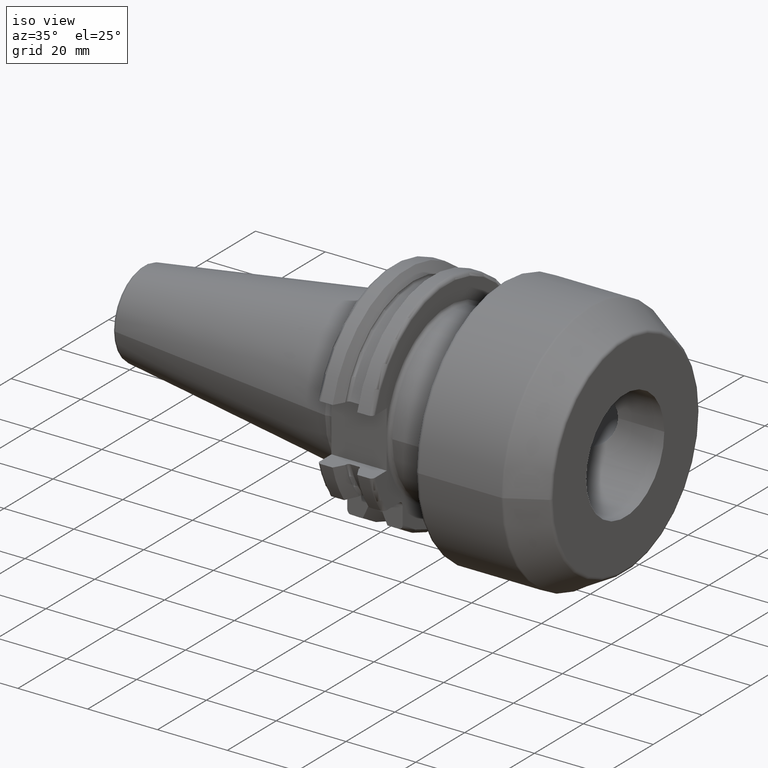
[diagram: clean part render]
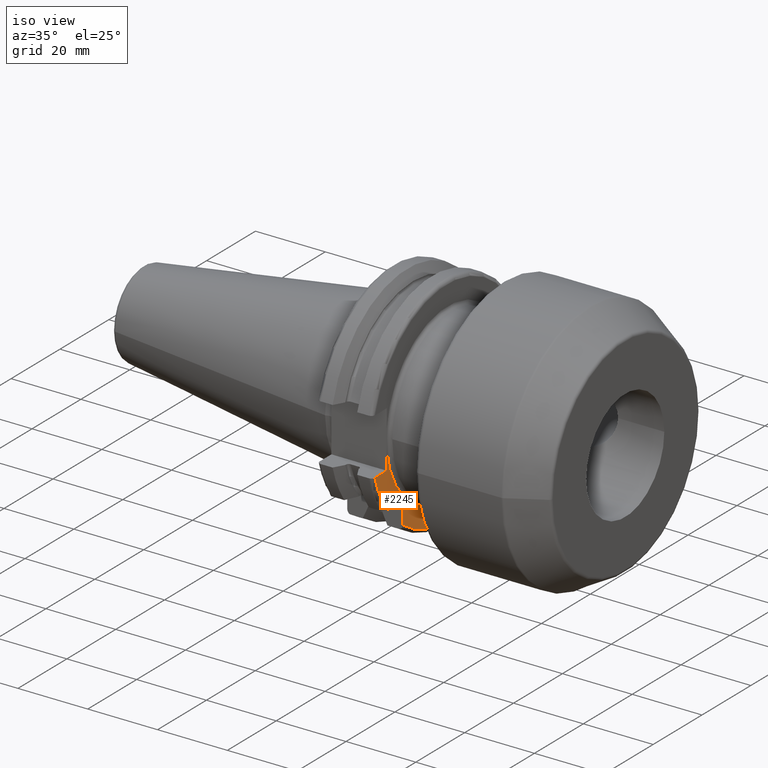
[diagram: same view with one face highlighted and labeled with its STEP entity id]
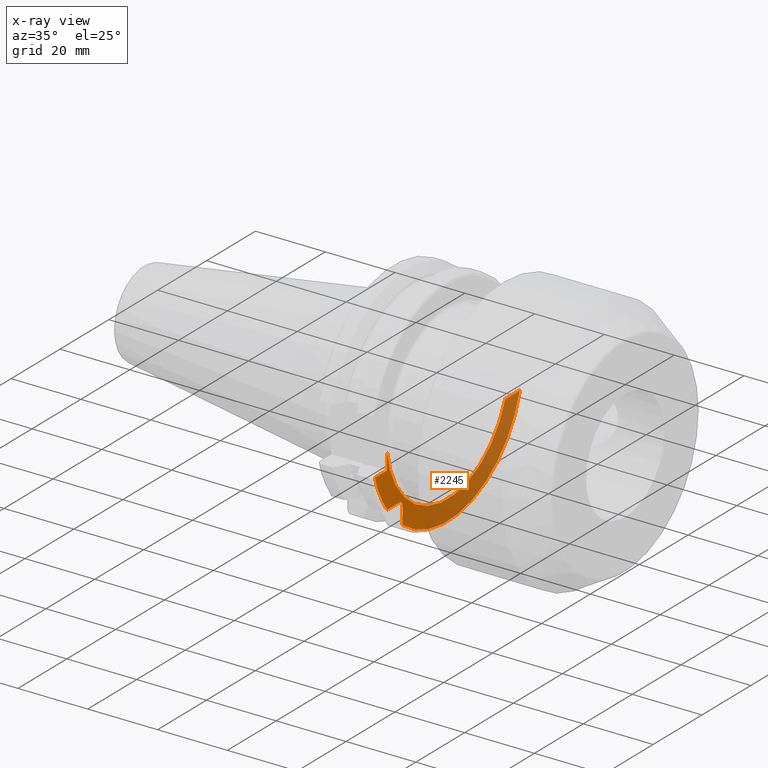
[diagram: x-ray of the same camera — body ghosted, the highlighted face saturated]
A machine part, iso view. The second image highlights one B-rep face of the part: STEP entity #2245.
The next image is the same camera in x-ray: the body ghosted, the highlighted face saturated — about 67% of this face is hidden behind the body in this view.
In plain terms, the highlighted planar face has unit normal (1, 0, 0).
Its self-contained STEP definition (entity closure, byte-faithful):
#346=DIRECTION('',(0.E0,8.334156118678E-7,9.999999999997E-1));
#347=VECTOR('',#346,5.364895567851E0);
#348=CARTESIAN_POINT('',(1.905E1,-2.485E1,-8.1E0));
#349=LINE('',#348,#347);
#350=CARTESIAN_POINT('',(1.905E1,0.E0,0.E0));
#351=DIRECTION('',(1.E0,0.E0,0.E0));
#352=DIRECTION('',(0.E0,-9.939926652530E-1,-1.094467058581E-1));
#353=AXIS2_PLACEMENT_3D('',#350,#351,#352);
#355=DIRECTION('',(0.E0,-1.E0,0.E0));
#356=VECTOR('',#355,6.025523739021E0);
#357=CARTESIAN_POINT('',(1.905E1,2.967695075728E1,-8.1E0));
#358=LINE('',#357,#356);
#359=DIRECTION('',(0.E0,0.E0,1.E0));
#360=VECTOR('',#359,4.990259339464E0);
#361=CARTESIAN_POINT('',(1.905E1,-1.835E1,-2.469025933946E1));
#362=LINE('',#361,#360);
#363=DIRECTION('',(0.E0,-1.E0,0.E0));
#364=VECTOR('',#363,4.990259339464E0);
#365=CARTESIAN_POINT('',(1.905E1,-1.97E1,-1.835E1));
#366=LINE('',#365,#364);
#367=DIRECTION('',(0.E0,1.E0,0.E0));
#368=VECTOR('',#367,4.826950757280E0);
#369=CARTESIAN_POINT('',(1.905E1,-2.967695075728E1,-8.1E0));
#370=LINE('',#369,#368);
#714=CARTESIAN_POINT('',(1.905E1,-1.97E1,-1.97E1));
#715=DIRECTION('',(-1.E0,0.E0,0.E0));
#716=DIRECTION('',(0.E0,0.E0,1.E0));
#717=AXIS2_PLACEMENT_3D('',#714,#715,#716);
#737=CARTESIAN_POINT('',(1.905E1,2.967695075728E1,-8.1E0));
#750=CARTESIAN_POINT('',(1.905E1,0.E0,0.E0));
#751=DIRECTION('',(-1.E0,0.E0,0.E0));
#752=DIRECTION('',(0.E0,9.647119303464E-1,-2.633075985372E-1));
#753=AXIS2_PLACEMENT_3D('',#750,#751,#752);
#766=CARTESIAN_POINT('',(1.905E1,0.E0,0.E0));
#767=DIRECTION('',(-1.E0,0.E0,0.E0));
#768=DIRECTION('',(0.E0,-8.026089992512E-1,-5.965054855750E-1));
#769=AXIS2_PLACEMENT_3D('',#766,#767,#768);
#1691=CARTESIAN_POINT('',(1.905E1,-2.967695075728E1,-8.1E0));
#1692=CARTESIAN_POINT('',(1.905E1,-2.485E1,-8.1E0));
#1693=VERTEX_POINT('',#1691);
#1694=VERTEX_POINT('',#1692);
#1737=VERTEX_POINT('',#737);
#1746=CARTESIAN_POINT('',(1.905E1,-1.835E1,-2.469025933946E1));
#1747=VERTEX_POINT('',#1746);
#1754=CARTESIAN_POINT('',(1.905E1,-1.97E1,-1.835E1));
#1755=CARTESIAN_POINT('',(1.905E1,-2.469025933946E1,-1.835E1));
#1756=VERTEX_POINT('',#1754);
#1757=VERTEX_POINT('',#1755);
#1758=CARTESIAN_POINT('',(1.905E1,-1.835E1,-1.97E1));
#1759=VERTEX_POINT('',#1758);
#1807=CARTESIAN_POINT('',(1.905E1,-2.484999552881E1,-2.735104432150E0));
#1808=VERTEX_POINT('',#1807);
#1817=CARTESIAN_POINT('',(1.905E1,2.365142701826E1,-8.1E0));
#1818=VERTEX_POINT('',#1817);
#2221=CARTESIAN_POINT('',(1.905E1,0.E0,0.E0));
#2222=DIRECTION('',(1.E0,0.E0,0.E0));
#2223=DIRECTION('',(0.E0,-1.E0,0.E0));
#2224=AXIS2_PLACEMENT_3D('',#2221,#2222,#2223);
#2225=PLANE('',#2224);
#2227=ORIENTED_EDGE('',*,*,#2226,.T.);
#2229=ORIENTED_EDGE('',*,*,#2228,.T.);
#2230=ORIENTED_EDGE('',*,*,#2187,.F.);
#2232=ORIENTED_EDGE('',*,*,#2231,.T.);
#2234=ORIENTED_EDGE('',*,*,#2233,.T.);
#2236=ORIENTED_EDGE('',*,*,#2235,.F.);
#2238=ORIENTED_EDGE('',*,*,#2237,.T.);
#2240=ORIENTED_EDGE('',*,*,#2239,.T.);
#2242=ORIENTED_EDGE('',*,*,#2241,.T.);
#2243=EDGE_LOOP('',(#2227,#2229,#2230,#2232,#2234,#2236,#2238,#2240,#2242));
#2244=FACE_OUTER_BOUND('',#2243,.F.);
#2245=ADVANCED_FACE('',(#2244),#2225,.T.);
#354=CIRCLE('',#353,2.5E1);
#718=CIRCLE('',#717,1.35E0);
#754=CIRCLE('',#753,3.07625E1);
#770=CIRCLE('',#769,3.07625E1);
#2187=EDGE_CURVE('',#1737,#1818,#358,.T.);
#2226=EDGE_CURVE('',#1694,#1808,#349,.T.);
#2228=EDGE_CURVE('',#1808,#1818,#354,.T.);
#2231=EDGE_CURVE('',#1737,#1747,#754,.T.);
#2233=EDGE_CURVE('',#1747,#1759,#362,.T.);
#2235=EDGE_CURVE('',#1756,#1759,#718,.T.);
#2237=EDGE_CURVE('',#1756,#1757,#366,.T.);
#2239=EDGE_CURVE('',#1757,#1693,#770,.T.);
#2241=EDGE_CURVE('',#1693,#1694,#370,.T.);